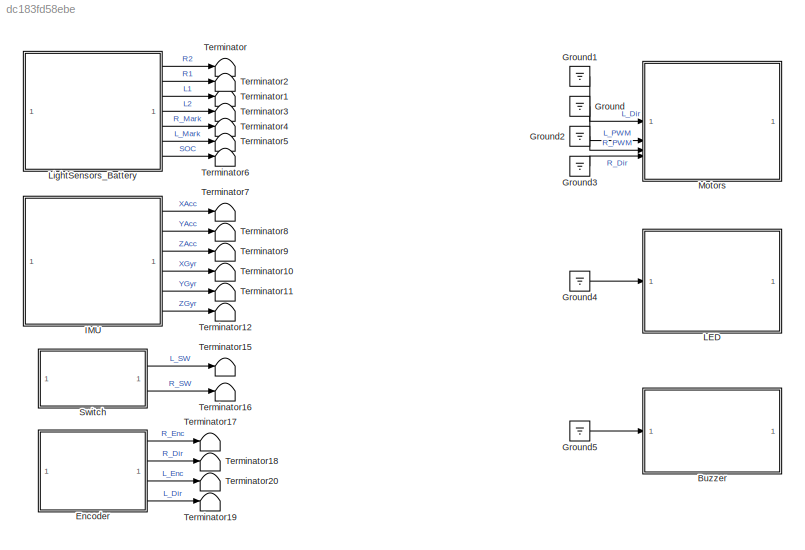
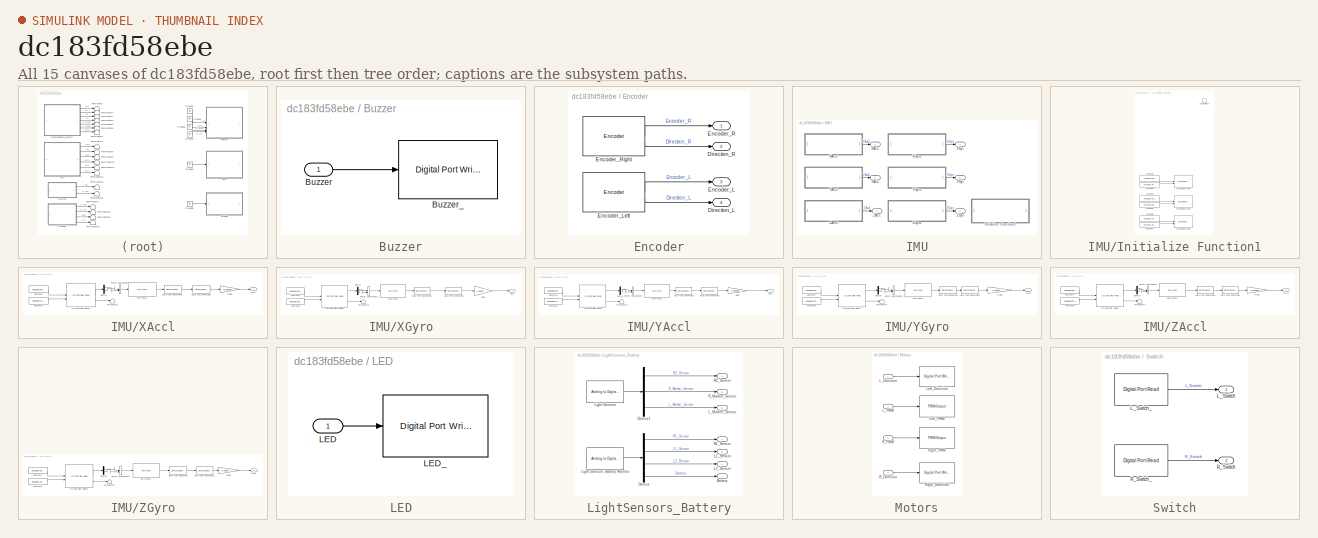
[diagram: thumbnail index - all 15 canvases of the model, root first then tree order]
MODEL slx_dc183fd58ebe
KIND model
CONFIG AbsTol = auto
CONFIG EnableMultiTasking = on
CONFIG FixedStep = auto
CONFIG MaxStep = auto
CONFIG MinStep = auto
CONFIG RelTol = 1e-3
CONFIG SampleTimeConstraint = Unconstrained
CONFIG SolverName = FixedStepAuto
CONFIG StartTime = 0.0
CONFIG StopTime = inf
BLOCK [SubSystem] Buzzer
BLOCK [Inport] Buzzer/Buzzer
BLOCK [Reference] Buzzer/Buzzer_  REF=stm32f4xxblockslib/Digital Port Write
  LibrarySourceBlock = stm32f3xxblockslib/Digital Port Write
  SourceBlock = stm32f4xxblockslib/Digital Port Write
  SourceType = stm32cube.blocks.DigitalPortWrite
BLOCK [SubSystem] Encoder
BLOCK [Outport] Encoder/Direction_L
  Port = 4
BLOCK [Outport] Encoder/Direction_R
  Port = 2
BLOCK [Outport] Encoder/Encoder_L
  Port = 3
BLOCK [Reference] Encoder/Encoder_Left  REF=stm32blockslib/Encoder
  LibrarySourceBlock = stm32f3xxblockslib/Encoder
  SourceBlock = stm32blockslib/Encoder
  SourceType = stm32cube.blocks.EncoderBlock
BLOCK [Outport] Encoder/Encoder_R
BLOCK [Reference] Encoder/Encoder_Right  REF=stm32blockslib/Encoder
  LibrarySourceBlock = stm32f3xxblockslib/Encoder
  SourceBlock = stm32blockslib/Encoder
  SourceType = stm32cube.blocks.EncoderBlock
BLOCK [Ground] Ground
BLOCK [Ground] Ground1
BLOCK [Ground] Ground2
BLOCK [Ground] Ground3
BLOCK [Ground] Ground4
BLOCK [Ground] Ground5
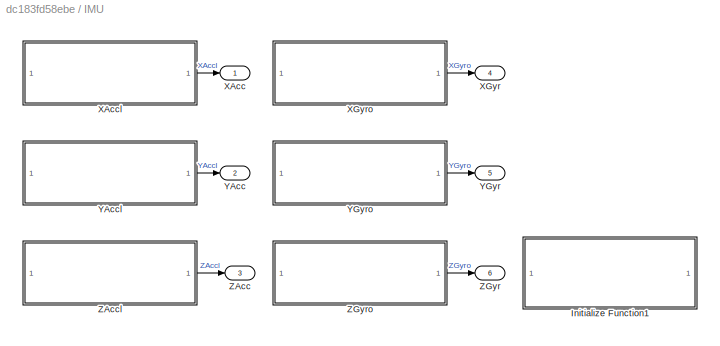
BLOCK [SubSystem] IMU
BLOCK [SubSystem] IMU/Initialize Function1
  TreatAsAtomicUnit = on
BLOCK [Constant] IMU/Initialize Function1/Constant15
  OutDataTypeStr = uint8
  Value = hex2dec('4F')
BLOCK [Constant] IMU/Initialize Function1/Constant16
  OutDataTypeStr = uint8
  Value = hex2dec('50')
BLOCK [Constant] IMU/Initialize Function1/Constant17
  OutDataTypeStr = uint8
  Value = hex2dec('4e')
BLOCK [Constant] IMU/Initialize Function1/Constant3
  OutDataTypeStr = uint8
  Value = hex2dec('06')
  VectorParams1D = off
BLOCK [Constant] IMU/Initialize Function1/Constant4
  OutDataTypeStr = uint8
  Value = hex2dec('06')
  VectorParams1D = off
BLOCK [Constant] IMU/Initialize Function1/Constant5
  OutDataTypeStr = uint8
  Value = hex2dec('1F')
  VectorParams1D = off
BLOCK [EventListener] IMU/Initialize Function1/Event Listener
  DisableCoverage = on
  EventName = reset
BLOCK [Reference] IMU/Initialize Function1/I2C Controller Write3  REF=stm32blockslib/I2C Controller Write
  LibrarySourceBlock = stm32f4xxblockslib/I2C Controller Write
  SourceBlock = stm32blockslib/I2C Controller Write
  SourceType = stm32cube.blocks.I2CControllerWrite
BLOCK [Reference] IMU/Initialize Function1/I2C Controller Write4  REF=stm32blockslib/I2C Controller Write
  LibrarySourceBlock = stm32f4xxblockslib/I2C Controller Write
  SourceBlock = stm32blockslib/I2C Controller Write
  SourceType = stm32cube.blocks.I2CControllerWrite
BLOCK [Reference] IMU/Initialize Function1/I2C Controller Write5  REF=stm32blockslib/I2C Controller Write
  LibrarySourceBlock = stm32f4xxblockslib/I2C Controller Write
  SourceBlock = stm32blockslib/I2C Controller Write
  SourceType = stm32cube.blocks.I2CControllerWrite
BLOCK [Outport] IMU/XAcc
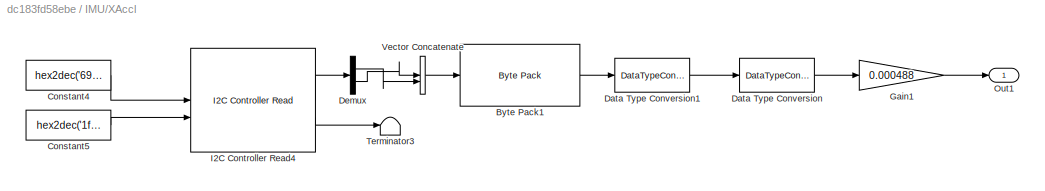
BLOCK [SubSystem] IMU/XAccl
BLOCK [Reference] IMU/XAccl/Byte Pack1  REF=svdutilitieslib/Byte Pack
  LibrarySourceBlock = mcblib/Signal Management/Byte Pack
  SourceBlock = svdutilitieslib/Byte Pack
  SourceType = Byte pack
BLOCK [Constant] IMU/XAccl/Constant4
  OutDataTypeStr = uint8
  Value = hex2dec('69')
BLOCK [Constant] IMU/XAccl/Constant5
  OutDataTypeStr = uint8
  Value = hex2dec('1f')
BLOCK [DataTypeConversion] IMU/XAccl/Data Type Conversion
  OutDataTypeStr = double
  RndMeth = Floor
  SaturateOnIntegerOverflow = off
BLOCK [DataTypeConversion] IMU/XAccl/Data Type Conversion1
  OutDataTypeStr = int16
  RndMeth = Floor
  SaturateOnIntegerOverflow = off
BLOCK [Demux] IMU/XAccl/Demux
  Outputs = 2
BLOCK [Gain] IMU/XAccl/Gain1
  Gain = 0.000488
BLOCK [Reference] IMU/XAccl/I2C Controller Read4  REF=stm32blockslib/I2C Controller Read
  LibrarySourceBlock = stm32f4xxblockslib/I2C Controller Read
  SourceBlock = stm32blockslib/I2C Controller Read
  SourceType = stm32cube.blocks.I2CControllerRead
BLOCK [Outport] IMU/XAccl/Out1
BLOCK [Terminator] IMU/XAccl/Terminator3
BLOCK [Concatenate] IMU/XAccl/Vector Concatenate
BLOCK [Outport] IMU/XGyr
  Port = 4
BLOCK [SubSystem] IMU/XGyro
BLOCK [Reference] IMU/XGyro/Byte Pack1  REF=svdutilitieslib/Byte Pack
  LibrarySourceBlock = mcblib/Signal Management/Byte Pack
  SourceBlock = svdutilitieslib/Byte Pack
  SourceType = Byte pack
BLOCK [Constant] IMU/XGyro/Constant4
  OutDataTypeStr = uint8
  Value = hex2dec('69')
BLOCK [Constant] IMU/XGyro/Constant5
  OutDataTypeStr = uint8
  Value = hex2dec('25')
BLOCK [DataTypeConversion] IMU/XGyro/Data Type Conversion
  OutDataTypeStr = double
  RndMeth = Floor
  SaturateOnIntegerOverflow = off
BLOCK [DataTypeConversion] IMU/XGyro/Data Type Conversion1
  OutDataTypeStr = int16
  RndMeth = Floor
  SaturateOnIntegerOverflow = off
BLOCK [Demux] IMU/XGyro/Demux
  Outputs = 2
BLOCK [Gain] IMU/XGyro/Gain1
  Gain = 0.0609756
BLOCK [Reference] IMU/XGyro/I2C Controller Read4  REF=stm32blockslib/I2C Controller Read
  LibrarySourceBlock = stm32f4xxblockslib/I2C Controller Read
  SourceBlock = stm32blockslib/I2C Controller Read
  SourceType = stm32cube.blocks.I2CControllerRead
BLOCK [Outport] IMU/XGyro/Out1
BLOCK [Terminator] IMU/XGyro/Terminator3
BLOCK [Concatenate] IMU/XGyro/Vector Concatenate
BLOCK [Outport] IMU/YAcc
  Port = 2
BLOCK [SubSystem] IMU/YAccl
BLOCK [Reference] IMU/YAccl/Byte Pack1  REF=svdutilitieslib/Byte Pack
  LibrarySourceBlock = mcblib/Signal Management/Byte Pack
  SourceBlock = svdutilitieslib/Byte Pack
  SourceType = Byte pack
BLOCK [Constant] IMU/YAccl/Constant4
  OutDataTypeStr = uint8
  Value = hex2dec('69')
BLOCK [Constant] IMU/YAccl/Constant5
  OutDataTypeStr = uint8
  Value = hex2dec('21')
BLOCK [DataTypeConversion] IMU/YAccl/Data Type Conversion
  OutDataTypeStr = double
  RndMeth = Floor
  SaturateOnIntegerOverflow = off
BLOCK [DataTypeConversion] IMU/YAccl/Data Type Conversion1
  OutDataTypeStr = int16
  RndMeth = Floor
  SaturateOnIntegerOverflow = off
BLOCK [Demux] IMU/YAccl/Demux
  Outputs = 2
BLOCK [Gain] IMU/YAccl/Gain1
  Gain = 0.000488
BLOCK [Reference] IMU/YAccl/I2C Controller Read4  REF=stm32blockslib/I2C Controller Read
  LibrarySourceBlock = stm32f4xxblockslib/I2C Controller Read
  SourceBlock = stm32blockslib/I2C Controller Read
  SourceType = stm32cube.blocks.I2CControllerRead
BLOCK [Outport] IMU/YAccl/Out1
BLOCK [Terminator] IMU/YAccl/Terminator3
BLOCK [Concatenate] IMU/YAccl/Vector Concatenate
BLOCK [Outport] IMU/YGyr
  Port = 5
BLOCK [SubSystem] IMU/YGyro
BLOCK [Reference] IMU/YGyro/Byte Pack1  REF=svdutilitieslib/Byte Pack
  LibrarySourceBlock = mcblib/Signal Management/Byte Pack
  SourceBlock = svdutilitieslib/Byte Pack
  SourceType = Byte pack
BLOCK [Constant] IMU/YGyro/Constant4
  OutDataTypeStr = uint8
  Value = hex2dec('69')
BLOCK [Constant] IMU/YGyro/Constant5
  OutDataTypeStr = uint8
  Value = hex2dec('27')
BLOCK [DataTypeConversion] IMU/YGyro/Data Type Conversion
  OutDataTypeStr = int16
  RndMeth = Floor
  SaturateOnIntegerOverflow = off
BLOCK [DataTypeConversion] IMU/YGyro/Data Type Conversion1
  OutDataTypeStr = double
  RndMeth = Floor
  SaturateOnIntegerOverflow = off
BLOCK [Demux] IMU/YGyro/Demux
  Outputs = 2
BLOCK [Gain] IMU/YGyro/Gain1
  Gain = 0.0609756
BLOCK [Reference] IMU/YGyro/I2C Controller Read4  REF=stm32blockslib/I2C Controller Read
  LibrarySourceBlock = stm32f4xxblockslib/I2C Controller Read
  SourceBlock = stm32blockslib/I2C Controller Read
  SourceType = stm32cube.blocks.I2CControllerRead
BLOCK [Outport] IMU/YGyro/Out1
BLOCK [Terminator] IMU/YGyro/Terminator3
BLOCK [Concatenate] IMU/YGyro/Vector Concatenate
BLOCK [Outport] IMU/ZAcc
  Port = 3
BLOCK [SubSystem] IMU/ZAccl
BLOCK [Reference] IMU/ZAccl/Byte Pack1  REF=svdutilitieslib/Byte Pack
  LibrarySourceBlock = mcblib/Signal Management/Byte Pack
  SourceBlock = svdutilitieslib/Byte Pack
  SourceType = Byte pack
BLOCK [Constant] IMU/ZAccl/Constant4
  OutDataTypeStr = uint8
  Value = hex2dec('69')
BLOCK [Constant] IMU/ZAccl/Constant5
  OutDataTypeStr = uint8
  Value = hex2dec('23')
BLOCK [DataTypeConversion] IMU/ZAccl/Data Type Conversion
  OutDataTypeStr = double
  RndMeth = Floor
  SaturateOnIntegerOverflow = off
BLOCK [DataTypeConversion] IMU/ZAccl/Data Type Conversion1
  OutDataTypeStr = int16
  RndMeth = Floor
  SaturateOnIntegerOverflow = off
BLOCK [Demux] IMU/ZAccl/Demux
  Outputs = 2
BLOCK [Gain] IMU/ZAccl/Gain1
  Gain = 0.000488
BLOCK [Reference] IMU/ZAccl/I2C Controller Read4  REF=stm32blockslib/I2C Controller Read
  LibrarySourceBlock = stm32f4xxblockslib/I2C Controller Read
  SourceBlock = stm32blockslib/I2C Controller Read
  SourceType = stm32cube.blocks.I2CControllerRead
BLOCK [Outport] IMU/ZAccl/Out1
BLOCK [Terminator] IMU/ZAccl/Terminator3
BLOCK [Concatenate] IMU/ZAccl/Vector Concatenate
BLOCK [Outport] IMU/ZGyr
  Port = 6
BLOCK [SubSystem] IMU/ZGyro
BLOCK [Reference] IMU/ZGyro/Byte Pack1  REF=svdutilitieslib/Byte Pack
  LibrarySourceBlock = mcblib/Signal Management/Byte Pack
  SourceBlock = svdutilitieslib/Byte Pack
  SourceType = Byte pack
BLOCK [Constant] IMU/ZGyro/Constant4
  OutDataTypeStr = uint8
  Value = hex2dec('69')
BLOCK [Constant] IMU/ZGyro/Constant5
  OutDataTypeStr = uint8
  Value = hex2dec('29')
BLOCK [DataTypeConversion] IMU/ZGyro/Data Type Conversion
  OutDataTypeStr = int16
  RndMeth = Floor
  SaturateOnIntegerOverflow = off
BLOCK [DataTypeConversion] IMU/ZGyro/Data Type Conversion1
  OutDataTypeStr = double
  RndMeth = Floor
  SaturateOnIntegerOverflow = off
BLOCK [Demux] IMU/ZGyro/Demux
  Outputs = 2
BLOCK [Gain] IMU/ZGyro/Gain1
  Gain = 0.0609756
BLOCK [Reference] IMU/ZGyro/I2C Controller Read4  REF=stm32blockslib/I2C Controller Read
  LibrarySourceBlock = stm32f4xxblockslib/I2C Controller Read
  SourceBlock = stm32blockslib/I2C Controller Read
  SourceType = stm32cube.blocks.I2CControllerRead
BLOCK [Outport] IMU/ZGyro/Out1
BLOCK [Terminator] IMU/ZGyro/Terminator3
BLOCK [Concatenate] IMU/ZGyro/Vector Concatenate
BLOCK [SubSystem] LED
BLOCK [Inport] LED/LED
BLOCK [Reference] LED/LED_  REF=stm32f4xxblockslib/Digital Port Write
  LibrarySourceBlock = stm32f3xxblockslib/Digital Port Write
  SourceBlock = stm32f4xxblockslib/Digital Port Write
  SourceType = stm32cube.blocks.DigitalPortWrite
BLOCK [SubSystem] LightSensors_Battery
BLOCK [Outport] LightSensors_Battery/Battery
  Port = 7
BLOCK [Demux] LightSensors_Battery/Demux
BLOCK [Demux] LightSensors_Battery/Demux1
  Outputs = 3
BLOCK [Outport] LightSensors_Battery/L1_Sensor
  Port = 3
BLOCK [Outport] LightSensors_Battery/L2_Sensor
  Port = 4
BLOCK [Outport] LightSensors_Battery/L_Marker_Sensor
  Port = 6
BLOCK [Reference] LightSensors_Battery/Light Sensors  REF=stm32f4xxblockslib/Analog to Digital Converter
  LibrarySourceBlock = stm32f3xxblockslib/Analog to Digital Converter
  SourceBlock = stm32f4xxblockslib/Analog to Digital Converter
  SourceType = stm32cube.blocks.AnalogInput
BLOCK [Reference] LightSensors_Battery/Light Sensors, Battery Monitor  REF=stm32f4xxblockslib/Analog to Digital Converter
  LibrarySourceBlock = stm32f3xxblockslib/Analog to Digital Converter
  SourceBlock = stm32f4xxblockslib/Analog to Digital Converter
  SourceType = stm32cube.blocks.AnalogInput
BLOCK [Outport] LightSensors_Battery/R1_Sensor
  Port = 2
BLOCK [Outport] LightSensors_Battery/R2_Sensor
BLOCK [Outport] LightSensors_Battery/R_Marker_Sensor
  Port = 5
BLOCK [SubSystem] Motors
BLOCK [Inport] Motors/L_Direction
BLOCK [Inport] Motors/L_PWM
  Port = 2
BLOCK [Reference] Motors/Left_Direction  REF=stm32f4xxblockslib/Digital Port Write
  LibrarySourceBlock = stm32f3xxblockslib/Digital Port Write
  SourceBlock = stm32f4xxblockslib/Digital Port Write
  SourceType = stm32cube.blocks.DigitalPortWrite
BLOCK [Reference] Motors/Left_PWM  REF=stm32f4xxblockslib/PWM Output
  LibrarySourceBlock = stm32f3xxblockslib/PWM Output
  SourceBlock = stm32f4xxblockslib/PWM Output
  SourceType = stm32cube.blocks.PWMOutput
BLOCK [Inport] Motors/R_Direction
  Port = 4
BLOCK [Inport] Motors/R_PWM
  Port = 3
BLOCK [Reference] Motors/Right_Direction  REF=stm32f4xxblockslib/Digital Port Write
  LibrarySourceBlock = stm32f3xxblockslib/Digital Port Write
  SourceBlock = stm32f4xxblockslib/Digital Port Write
  SourceType = stm32cube.blocks.DigitalPortWrite
BLOCK [Reference] Motors/Right_PWM  REF=stm32f4xxblockslib/PWM Output
  LibrarySourceBlock = stm32f3xxblockslib/PWM Output
  SourceBlock = stm32f4xxblockslib/PWM Output
  SourceType = stm32cube.blocks.PWMOutput
BLOCK [SubSystem] Switch
BLOCK [Outport] Switch/L_Switch
BLOCK [Reference] Switch/L_Switch_  REF=stm32f4xxblockslib/Digital Port Read
  LibrarySourceBlock = stm32f3xxblockslib/Digital Port Read
  SourceBlock = stm32f4xxblockslib/Digital Port Read
  SourceType = stm32cube.blocks.DigitalPortRead
BLOCK [Outport] Switch/R_Switch
  Port = 2
BLOCK [Reference] Switch/R_Switch_  REF=stm32f4xxblockslib/Digital Port Read
  LibrarySourceBlock = stm32f3xxblockslib/Digital Port Read
  SourceBlock = stm32f4xxblockslib/Digital Port Read
  SourceType = stm32cube.blocks.DigitalPortRead
BLOCK [Terminator] Terminator
BLOCK [Terminator] Terminator1
BLOCK [Terminator] Terminator10
BLOCK [Terminator] Terminator11
BLOCK [Terminator] Terminator12
BLOCK [Terminator] Terminator15
BLOCK [Terminator] Terminator16
BLOCK [Terminator] Terminator17
BLOCK [Terminator] Terminator18
BLOCK [Terminator] Terminator19
BLOCK [Terminator] Terminator2
BLOCK [Terminator] Terminator20
BLOCK [Terminator] Terminator3
BLOCK [Terminator] Terminator4
BLOCK [Terminator] Terminator5
BLOCK [Terminator] Terminator6
BLOCK [Terminator] Terminator7
BLOCK [Terminator] Terminator8
BLOCK [Terminator] Terminator9
LINE Buzzer/Buzzer:1 -> Buzzer/Buzzer_:1
LINE Encoder/Encoder_Left:1 -> Encoder/Encoder_L:1
LINE Encoder/Encoder_Left:2 -> Encoder/Direction_L:1
LINE Encoder/Encoder_Right:1 -> Encoder/Encoder_R:1
LINE Encoder/Encoder_Right:2 -> Encoder/Direction_R:1
LINE Encoder:1 -> Terminator17:1
LINE Encoder:2 -> Terminator18:1
LINE Encoder:3 -> Terminator20:1
LINE Encoder:4 -> Terminator19:1
LINE Ground1:1 -> Motors:1
LINE Ground2:1 -> Motors:3
LINE Ground3:1 -> Motors:4
LINE Ground4:1 -> LED:1
LINE Ground5:1 -> Buzzer:1
LINE Ground:1 -> Motors:2
LINE IMU/Initialize Function1/Constant15:1 -> IMU/Initialize Function1/I2C Controller Write3:2
LINE IMU/Initialize Function1/Constant16:1 -> IMU/Initialize Function1/I2C Controller Write4:2
LINE IMU/Initialize Function1/Constant17:1 -> IMU/Initialize Function1/I2C Controller Write5:2
LINE IMU/Initialize Function1/Constant3:1 -> IMU/Initialize Function1/I2C Controller Write3:1
LINE IMU/Initialize Function1/Constant4:1 -> IMU/Initialize Function1/I2C Controller Write4:1
LINE IMU/Initialize Function1/Constant5:1 -> IMU/Initialize Function1/I2C Controller Write5:1
LINE IMU/XAccl/Byte Pack1:1 -> IMU/XAccl/Data Type Conversion1:1
LINE IMU/XAccl/Constant4:1 -> IMU/XAccl/I2C Controller Read4:1
LINE IMU/XAccl/Constant5:1 -> IMU/XAccl/I2C Controller Read4:2
LINE IMU/XAccl/Data Type Conversion1:1 -> IMU/XAccl/Data Type Conversion:1
LINE IMU/XAccl/Data Type Conversion:1 -> IMU/XAccl/Gain1:1
LINE IMU/XAccl/Demux:1 -> IMU/XAccl/Vector Concatenate:2
LINE IMU/XAccl/Demux:2 -> IMU/XAccl/Vector Concatenate:1
LINE IMU/XAccl/Gain1:1 -> IMU/XAccl/Out1:1
LINE IMU/XAccl/I2C Controller Read4:1 -> IMU/XAccl/Demux:1
LINE IMU/XAccl/I2C Controller Read4:2 -> IMU/XAccl/Terminator3:1
LINE IMU/XAccl/Vector Concatenate:1 -> IMU/XAccl/Byte Pack1:1
LINE IMU/XAccl:1 -> IMU/XAcc:1
LINE IMU/XGyro/Byte Pack1:1 -> IMU/XGyro/Data Type Conversion1:1
LINE IMU/XGyro/Constant4:1 -> IMU/XGyro/I2C Controller Read4:1
LINE IMU/XGyro/Constant5:1 -> IMU/XGyro/I2C Controller Read4:2
LINE IMU/XGyro/Data Type Conversion1:1 -> IMU/XGyro/Data Type Conversion:1
LINE IMU/XGyro/Data Type Conversion:1 -> IMU/XGyro/Gain1:1
LINE IMU/XGyro/Demux:1 -> IMU/XGyro/Vector Concatenate:2
LINE IMU/XGyro/Demux:2 -> IMU/XGyro/Vector Concatenate:1
LINE IMU/XGyro/Gain1:1 -> IMU/XGyro/Out1:1
LINE IMU/XGyro/I2C Controller Read4:1 -> IMU/XGyro/Demux:1
LINE IMU/XGyro/I2C Controller Read4:2 -> IMU/XGyro/Terminator3:1
LINE IMU/XGyro/Vector Concatenate:1 -> IMU/XGyro/Byte Pack1:1
LINE IMU/XGyro:1 -> IMU/XGyr:1
LINE IMU/YAccl/Byte Pack1:1 -> IMU/YAccl/Data Type Conversion1:1
LINE IMU/YAccl/Constant4:1 -> IMU/YAccl/I2C Controller Read4:1
LINE IMU/YAccl/Constant5:1 -> IMU/YAccl/I2C Controller Read4:2
LINE IMU/YAccl/Data Type Conversion1:1 -> IMU/YAccl/Data Type Conversion:1
LINE IMU/YAccl/Data Type Conversion:1 -> IMU/YAccl/Gain1:1
LINE IMU/YAccl/Demux:1 -> IMU/YAccl/Vector Concatenate:2
LINE IMU/YAccl/Demux:2 -> IMU/YAccl/Vector Concatenate:1
LINE IMU/YAccl/Gain1:1 -> IMU/YAccl/Out1:1
LINE IMU/YAccl/I2C Controller Read4:1 -> IMU/YAccl/Demux:1
LINE IMU/YAccl/I2C Controller Read4:2 -> IMU/YAccl/Terminator3:1
LINE IMU/YAccl/Vector Concatenate:1 -> IMU/YAccl/Byte Pack1:1
LINE IMU/YAccl:1 -> IMU/YAcc:1
LINE IMU/YGyro/Byte Pack1:1 -> IMU/YGyro/Data Type Conversion:1
LINE IMU/YGyro/Constant4:1 -> IMU/YGyro/I2C Controller Read4:1
LINE IMU/YGyro/Constant5:1 -> IMU/YGyro/I2C Controller Read4:2
LINE IMU/YGyro/Data Type Conversion1:1 -> IMU/YGyro/Gain1:1
LINE IMU/YGyro/Data Type Conversion:1 -> IMU/YGyro/Data Type Conversion1:1
LINE IMU/YGyro/Demux:1 -> IMU/YGyro/Vector Concatenate:2
LINE IMU/YGyro/Demux:2 -> IMU/YGyro/Vector Concatenate:1
LINE IMU/YGyro/Gain1:1 -> IMU/YGyro/Out1:1
LINE IMU/YGyro/I2C Controller Read4:1 -> IMU/YGyro/Demux:1
LINE IMU/YGyro/I2C Controller Read4:2 -> IMU/YGyro/Terminator3:1
LINE IMU/YGyro/Vector Concatenate:1 -> IMU/YGyro/Byte Pack1:1
LINE IMU/YGyro:1 -> IMU/YGyr:1
LINE IMU/ZAccl/Byte Pack1:1 -> IMU/ZAccl/Data Type Conversion1:1
LINE IMU/ZAccl/Constant4:1 -> IMU/ZAccl/I2C Controller Read4:1
LINE IMU/ZAccl/Constant5:1 -> IMU/ZAccl/I2C Controller Read4:2
LINE IMU/ZAccl/Data Type Conversion1:1 -> IMU/ZAccl/Data Type Conversion:1
LINE IMU/ZAccl/Data Type Conversion:1 -> IMU/ZAccl/Gain1:1
LINE IMU/ZAccl/Demux:1 -> IMU/ZAccl/Vector Concatenate:2
LINE IMU/ZAccl/Demux:2 -> IMU/ZAccl/Vector Concatenate:1
LINE IMU/ZAccl/Gain1:1 -> IMU/ZAccl/Out1:1
LINE IMU/ZAccl/I2C Controller Read4:1 -> IMU/ZAccl/Demux:1
LINE IMU/ZAccl/I2C Controller Read4:2 -> IMU/ZAccl/Terminator3:1
LINE IMU/ZAccl/Vector Concatenate:1 -> IMU/ZAccl/Byte Pack1:1
LINE IMU/ZAccl:1 -> IMU/ZAcc:1
LINE IMU/ZGyro/Byte Pack1:1 -> IMU/ZGyro/Data Type Conversion:1
LINE IMU/ZGyro/Constant4:1 -> IMU/ZGyro/I2C Controller Read4:1
LINE IMU/ZGyro/Constant5:1 -> IMU/ZGyro/I2C Controller Read4:2
LINE IMU/ZGyro/Data Type Conversion1:1 -> IMU/ZGyro/Gain1:1
LINE IMU/ZGyro/Data Type Conversion:1 -> IMU/ZGyro/Data Type Conversion1:1
LINE IMU/ZGyro/Demux:1 -> IMU/ZGyro/Vector Concatenate:2
LINE IMU/ZGyro/Demux:2 -> IMU/ZGyro/Vector Concatenate:1
LINE IMU/ZGyro/Gain1:1 -> IMU/ZGyro/Out1:1
LINE IMU/ZGyro/I2C Controller Read4:1 -> IMU/ZGyro/Demux:1
LINE IMU/ZGyro/I2C Controller Read4:2 -> IMU/ZGyro/Terminator3:1
LINE IMU/ZGyro/Vector Concatenate:1 -> IMU/ZGyro/Byte Pack1:1
LINE IMU/ZGyro:1 -> IMU/ZGyr:1
LINE IMU:1 -> Terminator7:1
LINE IMU:2 -> Terminator8:1
LINE IMU:3 -> Terminator9:1
LINE IMU:4 -> Terminator10:1
LINE IMU:5 -> Terminator11:1
LINE IMU:6 -> Terminator12:1
LINE LED/LED:1 -> LED/LED_:1
LINE LightSensors_Battery/Demux1:1 -> LightSensors_Battery/R2_Sensor:1
LINE LightSensors_Battery/Demux1:2 -> LightSensors_Battery/R_Marker_Sensor:1
LINE LightSensors_Battery/Demux1:3 -> LightSensors_Battery/L_Marker_Sensor:1
LINE LightSensors_Battery/Demux:1 -> LightSensors_Battery/R1_Sensor:1
LINE LightSensors_Battery/Demux:2 -> LightSensors_Battery/L1_Sensor:1
LINE LightSensors_Battery/Demux:3 -> LightSensors_Battery/L2_Sensor:1
LINE LightSensors_Battery/Demux:4 -> LightSensors_Battery/Battery:1
LINE LightSensors_Battery/Light Sensors, Battery Monitor:1 -> LightSensors_Battery/Demux:1
LINE LightSensors_Battery/Light Sensors:1 -> LightSensors_Battery/Demux1:1
LINE LightSensors_Battery:1 -> Terminator:1
LINE LightSensors_Battery:2 -> Terminator2:1
LINE LightSensors_Battery:3 -> Terminator1:1
LINE LightSensors_Battery:4 -> Terminator3:1
LINE LightSensors_Battery:5 -> Terminator4:1
LINE LightSensors_Battery:6 -> Terminator5:1
LINE LightSensors_Battery:7 -> Terminator6:1
LINE Motors/L_Direction:1 -> Motors/Left_Direction:1
LINE Motors/L_PWM:1 -> Motors/Left_PWM:1
LINE Motors/R_Direction:1 -> Motors/Right_Direction:1
LINE Motors/R_PWM:1 -> Motors/Right_PWM:1
LINE Switch/L_Switch_:1 -> Switch/L_Switch:1
LINE Switch/R_Switch_:1 -> Switch/R_Switch:1
LINE Switch:1 -> Terminator15:1
LINE Switch:2 -> Terminator16:1
